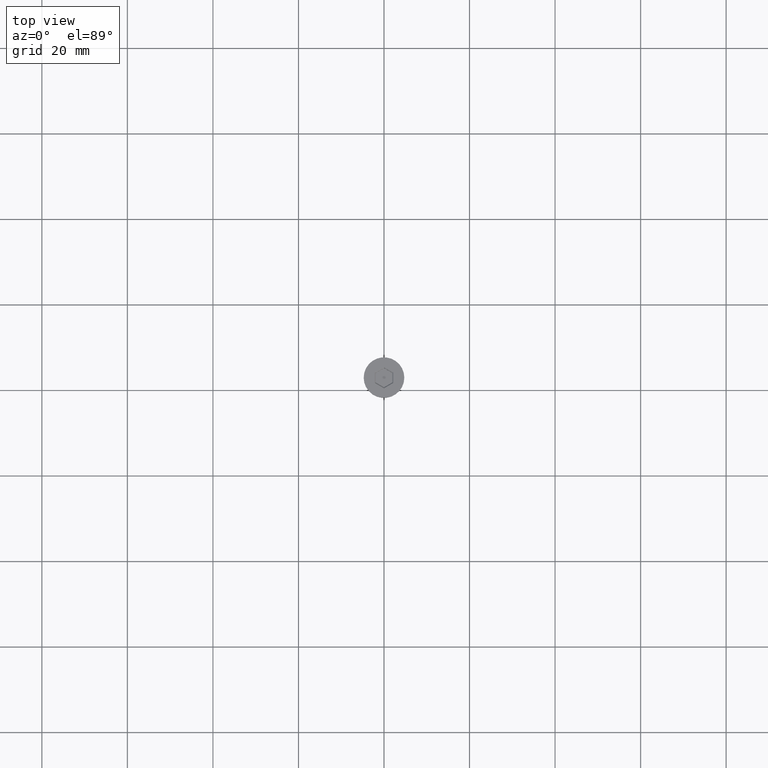
[diagram: clean part render]
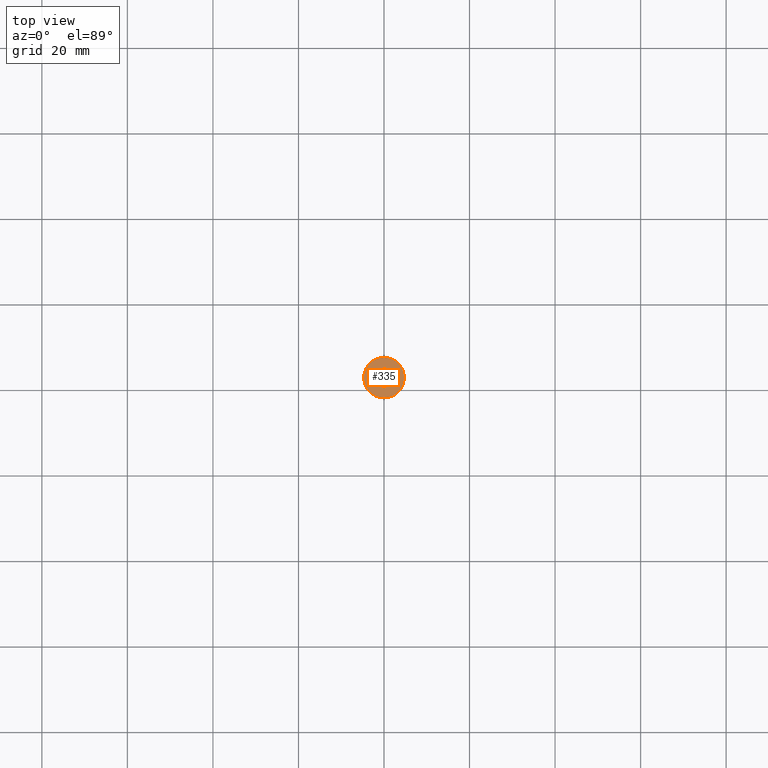
[diagram: same view with one face highlighted and labeled with its STEP entity id]
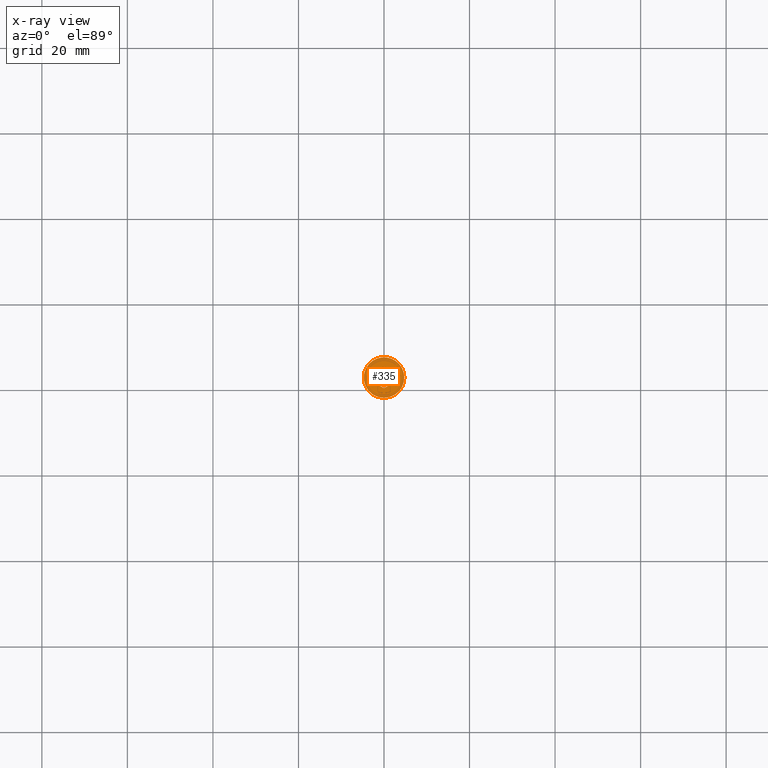
[diagram: x-ray of the same camera — body ghosted, the highlighted face saturated]
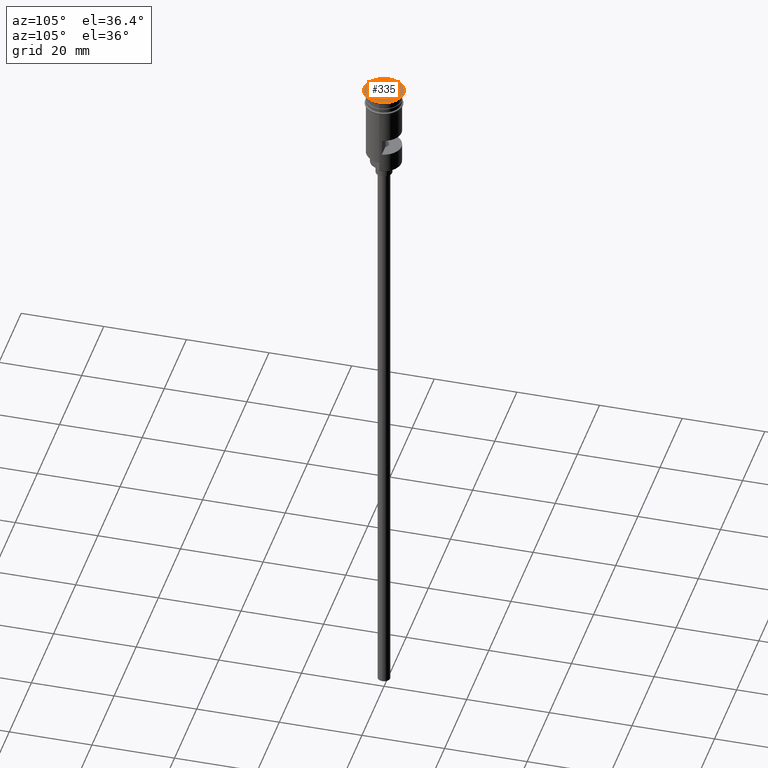
[diagram: same view with one face highlighted and labeled with its STEP entity id]
A machine part, top view. The second image highlights one B-rep face of the part: STEP entity #335.
The next image is the same camera in x-ray: the body ghosted, the highlighted face saturated — about 0% of this face is hidden behind the body in this view.
A second angle (auxiliary view) of the same face is appended — the face is thin or edge-on in the first view.
In plain terms, the highlighted planar face has unit normal (0, -0, 1).
Its self-contained STEP definition (entity closure, byte-faithful):
#4 = VERTEX_POINT ( 'NONE', #784 ) ;
#26 = EDGE_CURVE ( 'NONE', #467, #1270, #1471, .T. ) ;
#57 = LINE ( 'NONE', #1172, #529 ) ;
#75 = ORIENTED_EDGE ( 'NONE', *, *, #1362, .T. ) ;
#87 = VERTEX_POINT ( 'NONE', #871 ) ;
#95 = VECTOR ( 'NONE', #1249, 999.9999999999998863 ) ;
#145 = VERTEX_POINT ( 'NONE', #1442 ) ;
#157 = ORIENTED_EDGE ( 'NONE', *, *, #1456, .T. ) ;
#202 = VERTEX_POINT ( 'NONE', #1555 ) ;
#256 = LINE ( 'NONE', #731, #847 ) ;
#263 = FACE_BOUND ( 'NONE', #1006, .T. ) ;
#277 = CARTESIAN_POINT ( 'NONE',  ( 0.000000000000000000, 0.000000000000000000, 0.000000000000000000 ) ) ;
#318 = CIRCLE ( 'NONE', #1079, 4.750000000000000000 ) ;
#334 = ORIENTED_EDGE ( 'NONE', *, *, #26, .T. ) ;
#335 = ADVANCED_FACE ( 'NONE', ( #263, #747 ), #1091, .T. ) ;
#357 = DIRECTION ( 'NONE',  ( -1.926044357355332218E-16, -1.000000000000000000, 0.000000000000000000 ) ) ;
#370 = CIRCLE ( 'NONE', #500, 4.750000000000000000 ) ;
#388 = DIRECTION ( 'NONE',  ( -0.000000000000000000, -0.000000000000000000, 1.000000000000000000 ) ) ;
#467 = VERTEX_POINT ( 'NONE', #1325 ) ;
#471 = DIRECTION ( 'NONE',  ( 0.000000000000000000, -0.000000000000000000, 1.000000000000000000 ) ) ;
#494 = ORIENTED_EDGE ( 'NONE', *, *, #1564, .T. ) ;
#500 = AXIS2_PLACEMENT_3D ( 'NONE', #277, #388, #1031 ) ;
#525 = AXIS2_PLACEMENT_3D ( 'NONE', #1586, #471, #968 ) ;
#529 = VECTOR ( 'NONE', #903, 1000.000000000000000 ) ;
#537 = LINE ( 'NONE', #660, #682 ) ;
#561 = VECTOR ( 'NONE', #1419, 1000.000000000000000 ) ;
#562 = ORIENTED_EDGE ( 'NONE', *, *, #1111, .T. ) ;
#632 = DIRECTION ( 'NONE',  ( -0.000000000000000000, -0.000000000000000000, 1.000000000000000000 ) ) ;
#660 = CARTESIAN_POINT ( 'NONE',  ( -2.049999999999997602, -1.299038105676652011, 0.000000000000000000 ) ) ;
#663 = EDGE_CURVE ( 'NONE', #145, #87, #318, .T. ) ;
#671 = ORIENTED_EDGE ( 'NONE', *, *, #663, .T. ) ;
#673 = EDGE_CURVE ( 'NONE', #87, #145, #370, .T. ) ;
#682 = VECTOR ( 'NONE', #1321, 1000.000000000000114 ) ;
#731 = CARTESIAN_POINT ( 'NONE',  ( 2.149999999999992806, -1.125833024919770331, 0.000000000000000000 ) ) ;
#739 = VERTEX_POINT ( 'NONE', #942 ) ;
#747 = FACE_OUTER_BOUND ( 'NONE', #1336, .T. ) ;
#784 = CARTESIAN_POINT ( 'NONE',  ( -6.517717499969021618E-16, -2.482606157515383050, 0.000000000000000000 ) ) ;
#847 = VECTOR ( 'NONE', #357, 1000.000000000000000 ) ;
#864 = DIRECTION ( 'NONE',  ( 0.8660254037844385966, -0.5000000000000001110, 0.000000000000000000 ) ) ;
#865 = VERTEX_POINT ( 'NONE', #1188 ) ;
#868 = VECTOR ( 'NONE', #864, 1000.000000000000114 ) ;
#871 = CARTESIAN_POINT ( 'NONE',  ( -4.750000000000000000, 5.817072295949927426E-16, 0.000000000000000000 ) ) ;
#903 = DIRECTION ( 'NONE',  ( 9.630221786776664787E-17, 1.000000000000000000, 0.000000000000000000 ) ) ;
#942 = CARTESIAN_POINT ( 'NONE',  ( -2.149999999999994582, -1.241303078757691303, 0.000000000000000000 ) ) ;
#968 = DIRECTION ( 'NONE',  ( 1.000000000000000000, 0.000000000000000000, 0.000000000000000000 ) ) ;
#1006 = EDGE_LOOP ( 'NONE', ( #494, #562, #1350, #334, #75, #157 ) ) ;
#1010 = DIRECTION ( 'NONE',  ( 1.000000000000000000, 0.000000000000000000, 0.000000000000000000 ) ) ;
#1031 = DIRECTION ( 'NONE',  ( 1.000000000000000000, 0.000000000000000000, 0.000000000000000000 ) ) ;
#1079 = AXIS2_PLACEMENT_3D ( 'NONE', #1239, #632, #1010 ) ;
#1091 = PLANE ( 'NONE',  #525 ) ;
#1093 = LINE ( 'NONE', #1587, #95 ) ;
#1111 = EDGE_CURVE ( 'NONE', #739, #865, #57, .T. ) ;
#1170 = ORIENTED_EDGE ( 'NONE', *, *, #673, .T. ) ;
#1172 = CARTESIAN_POINT ( 'NONE',  ( -2.149999999999994138, 1.125833024919770109, 0.000000000000000000 ) ) ;
#1188 = CARTESIAN_POINT ( 'NONE',  ( -2.149999999999994138, 1.241303078757690859, 0.000000000000000000 ) ) ;
#1239 = CARTESIAN_POINT ( 'NONE',  ( 0.000000000000000000, 0.000000000000000000, 0.000000000000000000 ) ) ;
#1249 = DIRECTION ( 'NONE',  ( 0.8660254037844385966, 0.5000000000000002220, 0.000000000000000000 ) ) ;
#1270 = VERTEX_POINT ( 'NONE', #1427 ) ;
#1321 = DIRECTION ( 'NONE',  ( -0.8660254037844385966, 0.5000000000000001110, 0.000000000000000000 ) ) ;
#1325 = CARTESIAN_POINT ( 'NONE',  ( 3.890099324841783067E-16, 2.482606157515383494, 0.000000000000000000 ) ) ;
#1336 = EDGE_LOOP ( 'NONE', ( #671, #1170 ) ) ;
#1350 = ORIENTED_EDGE ( 'NONE', *, *, #1440, .T. ) ;
#1362 = EDGE_CURVE ( 'NONE', #1270, #202, #256, .T. ) ;
#1419 = DIRECTION ( 'NONE',  ( -0.8660254037844387076, -0.4999999999999998335, 0.000000000000000000 ) ) ;
#1427 = CARTESIAN_POINT ( 'NONE',  ( 2.149999999999993250, 1.241303078757691969, 0.000000000000000000 ) ) ;
#1440 = EDGE_CURVE ( 'NONE', #865, #467, #1093, .T. ) ;
#1442 = CARTESIAN_POINT ( 'NONE',  ( 4.750000000000000000, 0.000000000000000000, 0.000000000000000000 ) ) ;
#1456 = EDGE_CURVE ( 'NONE', #202, #4, #1498, .T. ) ;
#1471 = LINE ( 'NONE', #1597, #868 ) ;
#1498 = LINE ( 'NONE', #1516, #561 ) ;
#1516 = CARTESIAN_POINT ( 'NONE',  ( 0.09999999999999617528, -2.424871130596422564, 0.000000000000000000 ) ) ;
#1555 = CARTESIAN_POINT ( 'NONE',  ( 2.149999999999992806, -1.241303078757692413, 0.000000000000000000 ) ) ;
#1564 = EDGE_CURVE ( 'NONE', #4, #739, #537, .T. ) ;
#1586 = CARTESIAN_POINT ( 'NONE',  ( 0.000000000000000000, 0.000000000000000000, 0.000000000000000000 ) ) ;
#1587 = CARTESIAN_POINT ( 'NONE',  ( -0.09999999999999692468, 2.424871130596422564, 0.000000000000000000 ) ) ;
#1597 = CARTESIAN_POINT ( 'NONE',  ( 2.049999999999996714, 1.299038105676652455, 0.000000000000000000 ) ) ;